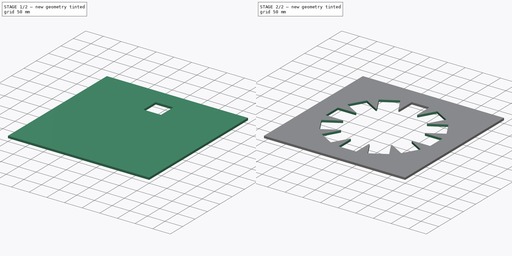
[diagram: build sequence overview — one tinted view per stage of 2, left to right]
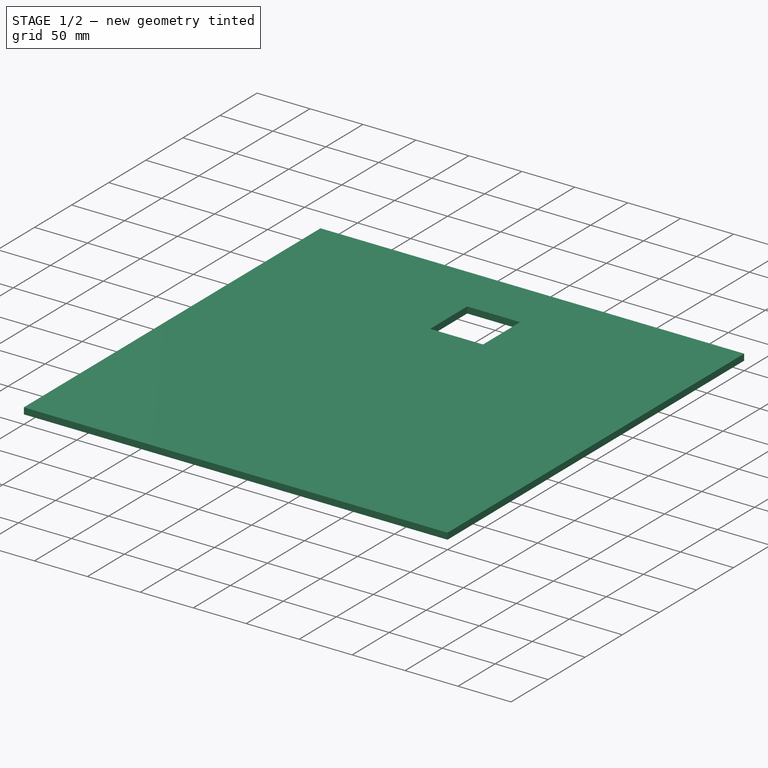
[diagram: stage 1 of 2 — iso view after this stage's code; geometry added in this stage tinted green]
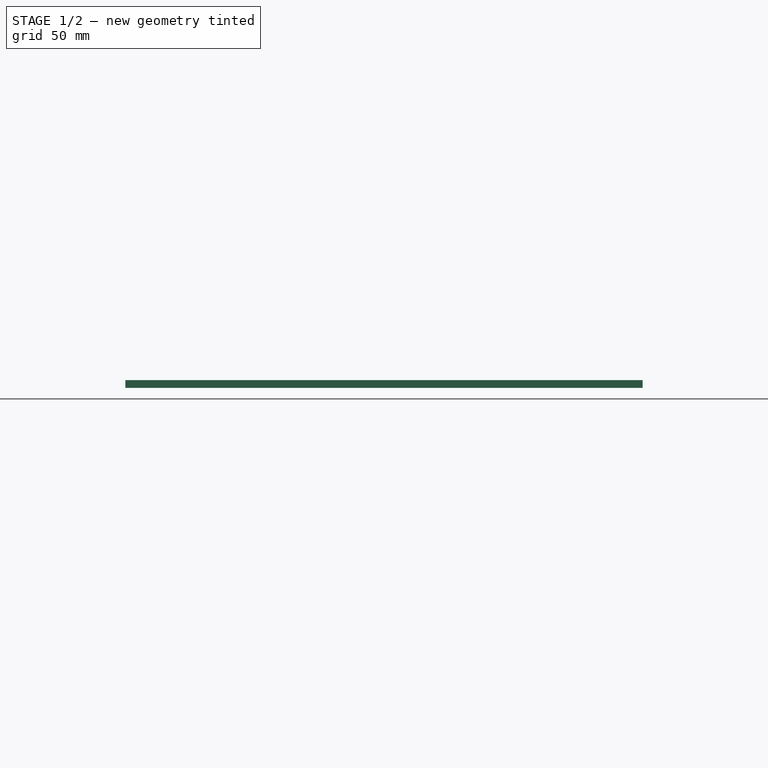
[diagram: stage 1 of 2 — front view after this stage's code; geometry added in this stage tinted green]
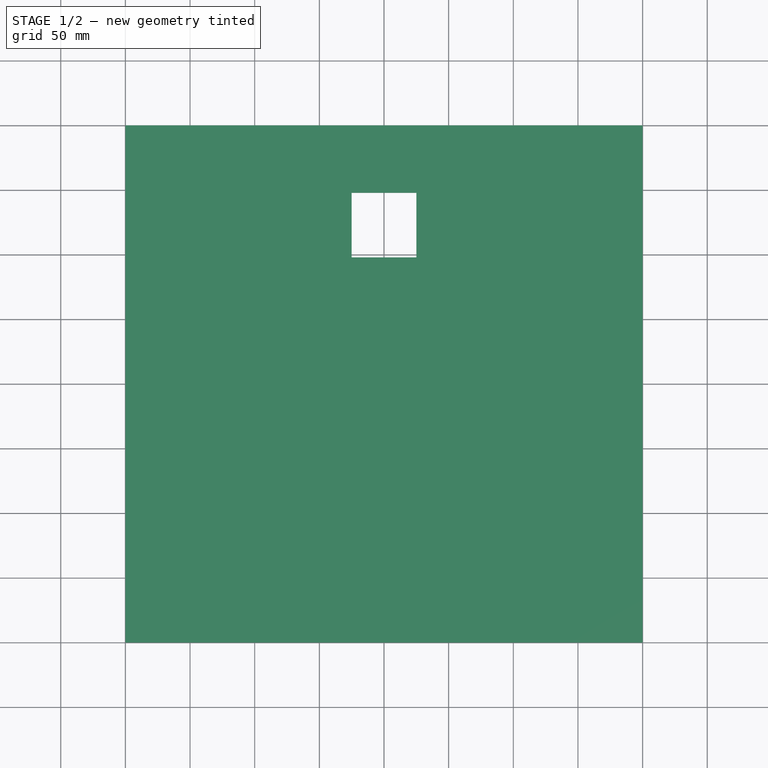
[diagram: stage 1 of 2 — top view after this stage's code; geometry added in this stage tinted green]
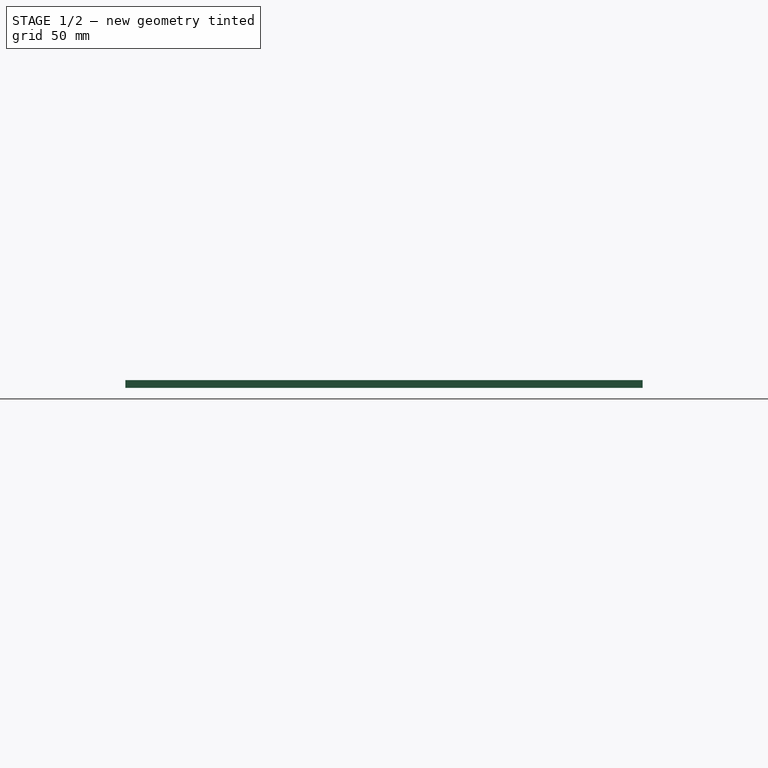
[diagram: stage 1 of 2 — right view after this stage's code; geometry added in this stage tinted green]
FCSTD DOCUMENT  (FreeCAD 0.20R29177 (Git))
Label: Rotor_MagnetJig_Outer
License: All rights reserved
LicenseURL: http://en.wikipedia.org/wiki/All_rights_reserved
objects: Sketcher::SketchObject×3, PartDesign::Pocket×2, Spreadsheet::Sheet×1, PartDesign::Pad×1, PartDesign::PolarPattern×1, PartDesign::Body×1
note: 11 computed .brp shape members not serialized (recipe doc carries the construction recipe); baked Part::Feature solids carry a one-line shape summary decoded from their .brp
EXTERNAL_REF file=../../../Master_of_Puppets.FCStd obj=Alternator
EXTERNAL_REF file=../../../Master_of_Puppets.FCStd obj=Spreadsheet

FEATURE [Sketcher::SketchObject] Sketch002  label="MagnetSketch"
  FullyConstrained = true
  MapMode = 5
  Placement = pos=(0,0,6) rot=(0,0,1;0rad)
  expr: .Placement.Base.z = Spreadsheet.MagnetJigThickness
  expr: Constraints[13] = Spreadsheet.DistanceOfMagnetFromCenter
  expr: Constraints[4] = Spreadsheet.MagnetWidth
  expr: Constraints[5] = Spreadsheet.MagnetLength
  sketch-geometry (5):
    g0: LineSegment StartX=25 StartY=147.902 StartZ=0 EndX=25 EndY=97.902 EndZ=0
    g1: LineSegment StartX=25 StartY=97.902 StartZ=0 EndX=-25 EndY=97.902 EndZ=0
    g2: LineSegment StartX=-25 StartY=97.902 StartZ=0 EndX=-25 EndY=147.902 EndZ=0
    g3: LineSegment StartX=-25 StartY=147.902 StartZ=0 EndX=25 EndY=147.902 EndZ=0
    g4: LineSegment StartX=0 StartY=0 StartZ=0 EndX=0 EndY=97.902 EndZ=0
  constraints (14):
    c: Coincident(g0,g1)
    c: Coincident(g1,g2)
    c: Vertical(g0)
    c: Vertical(g2)
    c: DistanceX(g2,g0) = 50
    c: DistanceY(g2,g2) = 50
    c: Coincident(g3,g2)
    c: Coincident(g3,g0)
    c: Horizontal(g3)
    c: Symmetric(g0,g1,g-2)
    c: Coincident(g4,g-1)
    c: PointOnObject(g4,g1)
    c: Vertical(g4)
    c: DistanceY(g4,g4) = 97.902
FEATURE [Spreadsheet::Sheet] Spreadsheet
  cells = A1=Inputs; A2=RotorDiskRadius; B2(RotorDiskRadius)==Master_of_Puppets#Spreadsheet.RotorDiskRadius; A3=MagnetWidth; B3(MagnetWidth)==Master_of_Puppets#Spreadsheet.MagnetWidth; A4=MagnetLength; B4(MagnetLength)==Master_of_Puppets#Spreadsheet.MagnetLength; A5=NumberMagnet; B5(NumberMagnet)==Master_of_Puppets#Spreadsheet.NumberMagnet; A6=RotorMoldSideLength; B6(RotorMoldSideLength)==Master_of_Puppets#Alternator.RotorMoldSideLength; A7=MagnetJigThickness; B7(MagnetJigThickness)==Master_of_Puppets#Alternator.MagnetJigThickness; A8=DistanceOfMagnetFromCenter; B8(DistanceOfMagnetFromCenter)==Master_of_Puppets#Alternator.DistanceOfMagnetFromCenter; A9=Calculated; A10=Inradius; B10(Inradius)==DistanceOfMagnetFromCenter; A11=SideLength; B11(SideLength)==2 * Inradius * tan(180 / NumberMagnet); C11=https://keisan.casio.com/exec/system/1223432660; A12=InnerHoleRadius; B12(InnerHoleRadius)==SideLength / (2 * sin(180 / NumberMagnet)); C12=https://www-formula.com/geometry/radius-circumcircle/radius-circumcircle-regular-polygon
FEATURE [Sketcher::SketchObject] Sketch  label="SquareSketch"
  FullyConstrained = true
  MapMode = 5
  Support = -> [XY_Plane001]
  expr: Constraints[6] = Spreadsheet.RotorMoldSideLength
  sketch-geometry (4):
    g0: LineSegment StartX=-199.995 StartY=-199.995 StartZ=0 EndX=199.995 EndY=-199.995 EndZ=0
    g1: LineSegment StartX=199.995 StartY=-199.995 StartZ=0 EndX=199.995 EndY=199.995 EndZ=0
    g2: LineSegment StartX=199.995 StartY=199.995 StartZ=0 EndX=-199.995 EndY=199.995 EndZ=0
    g3: LineSegment StartX=-199.995 StartY=199.995 StartZ=0 EndX=-199.995 EndY=-199.995 EndZ=0
  constraints (10):
    c: Coincident(g0,g1)
    c: Coincident(g1,g2)
    c: Coincident(g2,g3)
    c: Coincident(g3,g0)
    c: Horizontal(g2)
    c: Vertical(g3)
    c: DistanceX(g2,g2) = 399.99
    c: Equal(g3,g0)
    c: Symmetric(g1,g0,g-1)
    c: Symmetric(g0,g0,g-2)
FEATURE [PartDesign::Pad] Pad  label="SquarePad"
  AllowMultiFace = false
  Direction = (0,0,1)
  Length = 6
  Length2 = 100
  Profile = -> Sketch
  Type = 0
  expr: Length = Spreadsheet.MagnetJigThickness
FEATURE [PartDesign::Pocket] Pocket001  label="MagnetPocket"
  AllowMultiFace = false
  BaseFeature = -> Pad
  Direction = (0,0,-1)
  Length = 5
  Length2 = 100
  Profile = -> Sketch002
  Type = 1
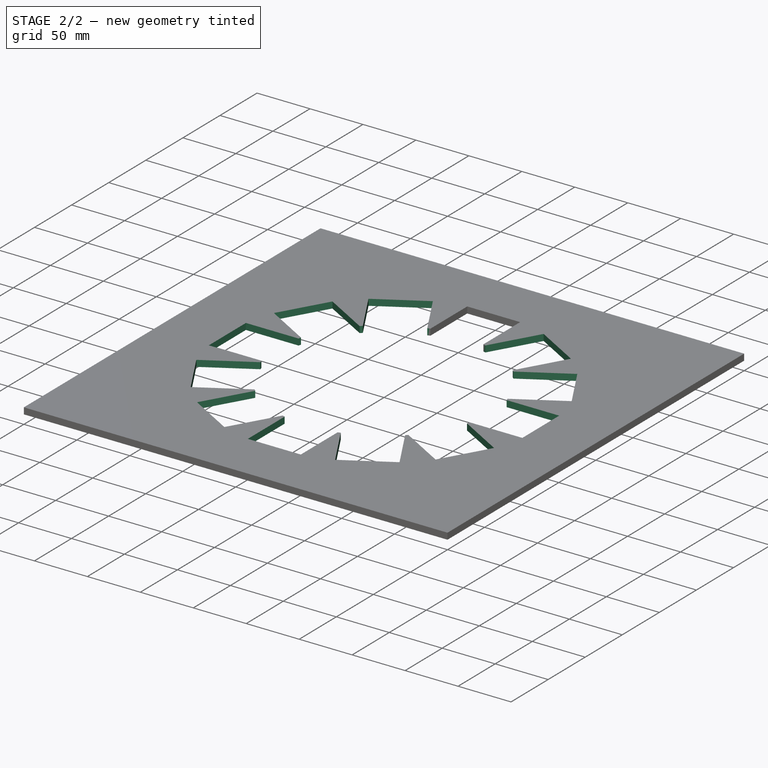
[diagram: stage 2 of 2 — iso view after this stage's code; geometry added in this stage tinted green]
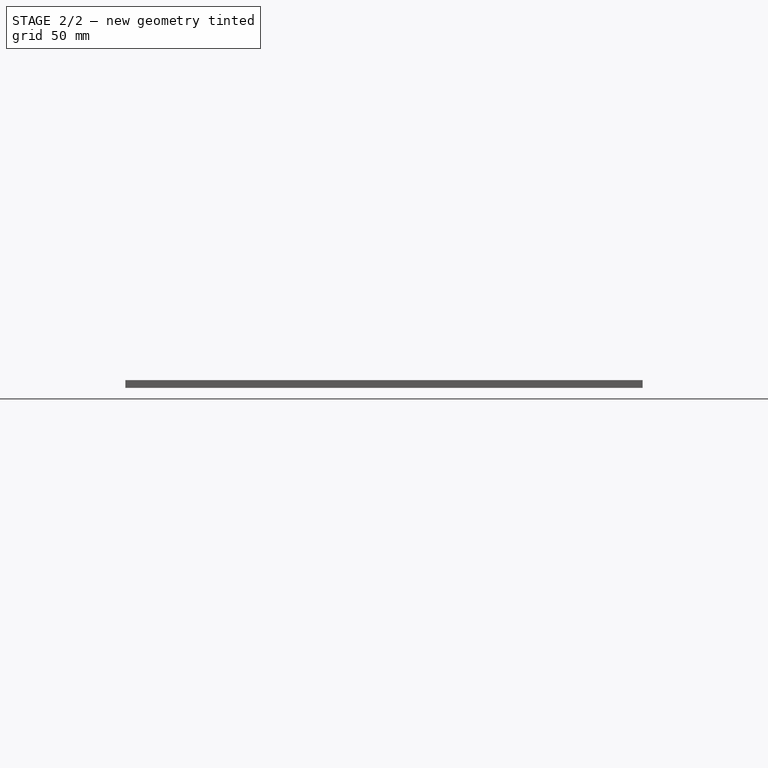
[diagram: stage 2 of 2 — front view after this stage's code; geometry added in this stage tinted green]
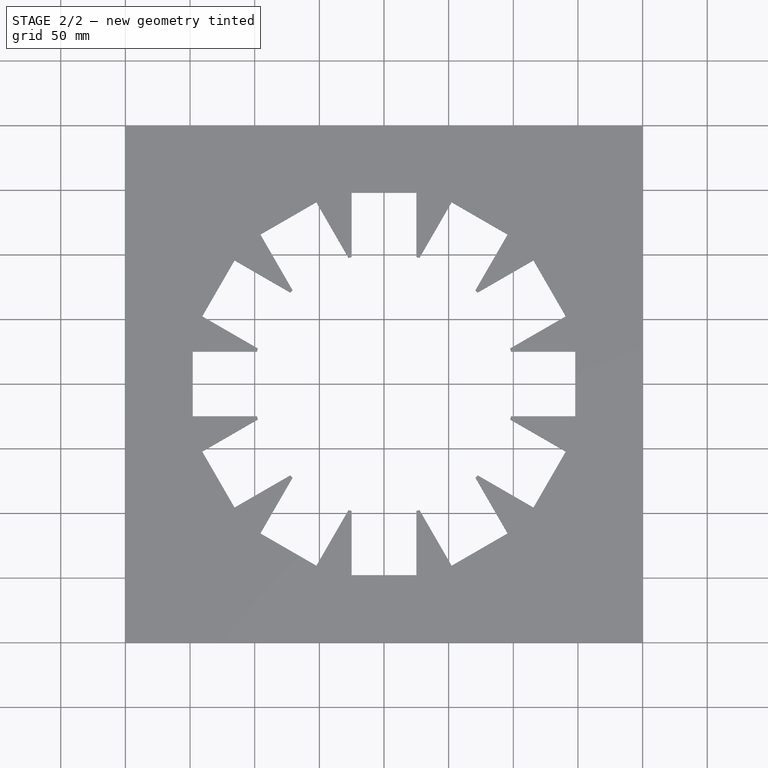
[diagram: stage 2 of 2 — top view after this stage's code; geometry added in this stage tinted green]
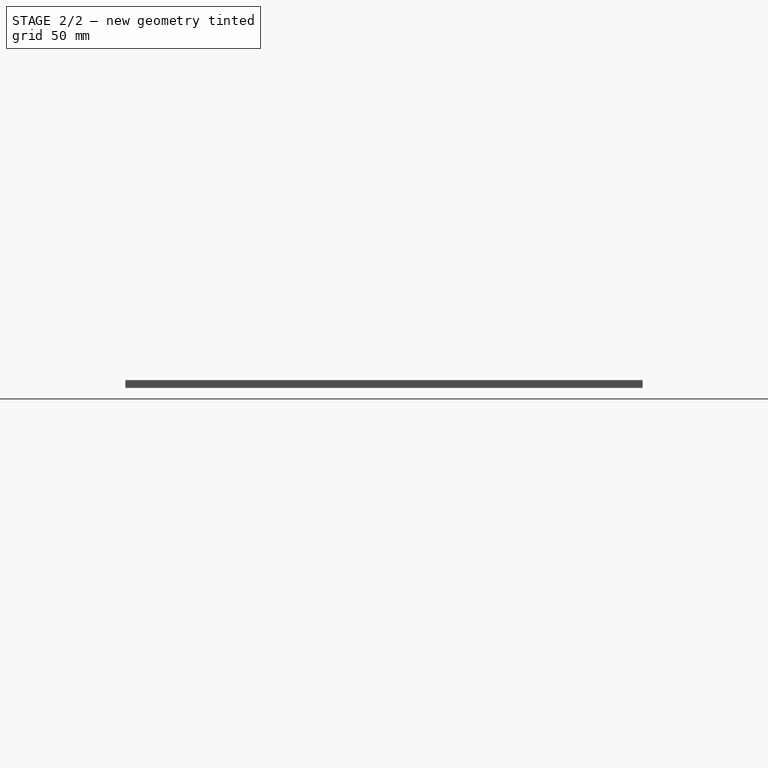
[diagram: stage 2 of 2 — right view after this stage's code; geometry added in this stage tinted green]
FEATURE [PartDesign::PolarPattern] PolarPattern  label="MagnetPolarPattern"
  Angle = 360
  Axis = -> Sketch002 [N_Axis]
  BaseFeature = -> Pocket001
  Occurrences = 12
  Originals = -> [Pocket001]
  expr: Occurrences = Spreadsheet.NumberMagnet
FEATURE [Sketcher::SketchObject] Sketch003  label="InnerHoleSketch"
  FullyConstrained = true
  MapMode = 5
  Placement = pos=(0,0,0) rot=(0,1,0;3.14159rad)
  Support = -> [XY_Plane001]
  expr: Constraints[1] = Spreadsheet.InnerHoleRadius
  sketch-geometry (1):
    g0: Circle CenterX=0 CenterY=0 CenterZ=0 NormalX=0 NormalY=0 NormalZ=1 AngleXU=0 Radius=101.356
  constraints (2):
    c: Coincident(g0,g-1)
    c: Radius(g0) = 101.356
FEATURE [PartDesign::Pocket] Pocket  label="InnerHolePocket"
  BaseFeature = -> PolarPattern
  Direction = (0,0,1)
  Length = 4
  Length2 = 100
  Profile = -> Sketch003
  Type = 1
FEATURE [PartDesign::Body] PolarPatternBody  label="Rotor_MagnetJig"
  Group = -> [Sketch,Pad,Sketch002,Pocket001,PolarPattern,Sketch003,Pocket]
  Openafpm_Flat = true
  Origin = -> Origin001
  Tip = -> Pocket
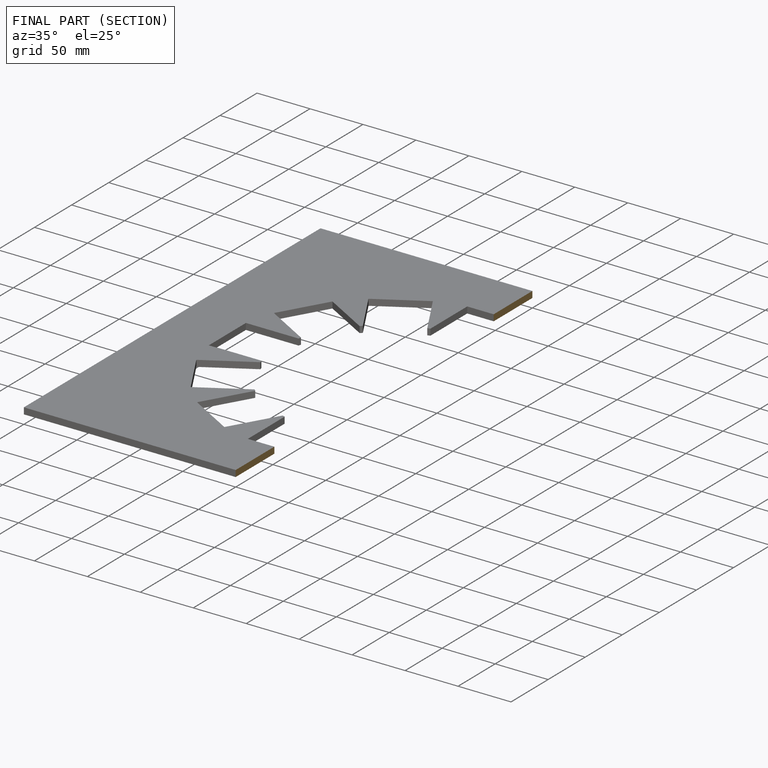
[diagram: finished part — half-section view (interior)]
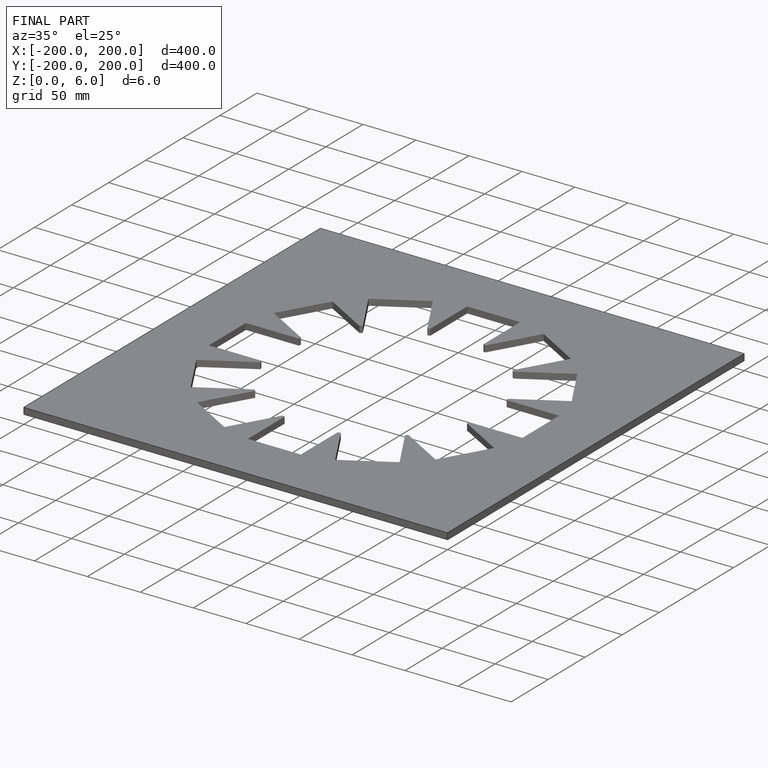
[diagram: finished part — iso view with bounding-box wireframe]
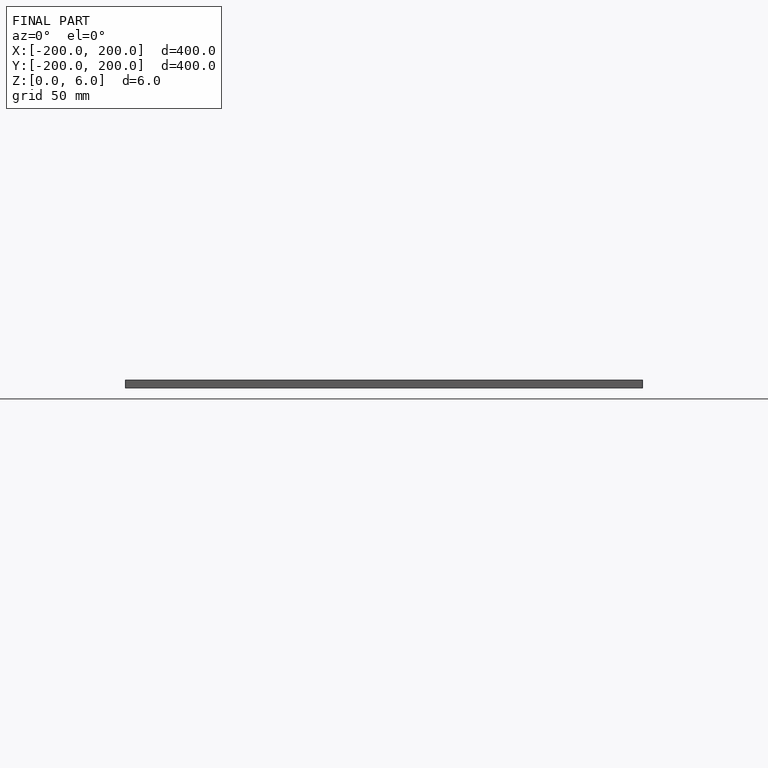
[diagram: finished part — front view with bounding-box wireframe]
